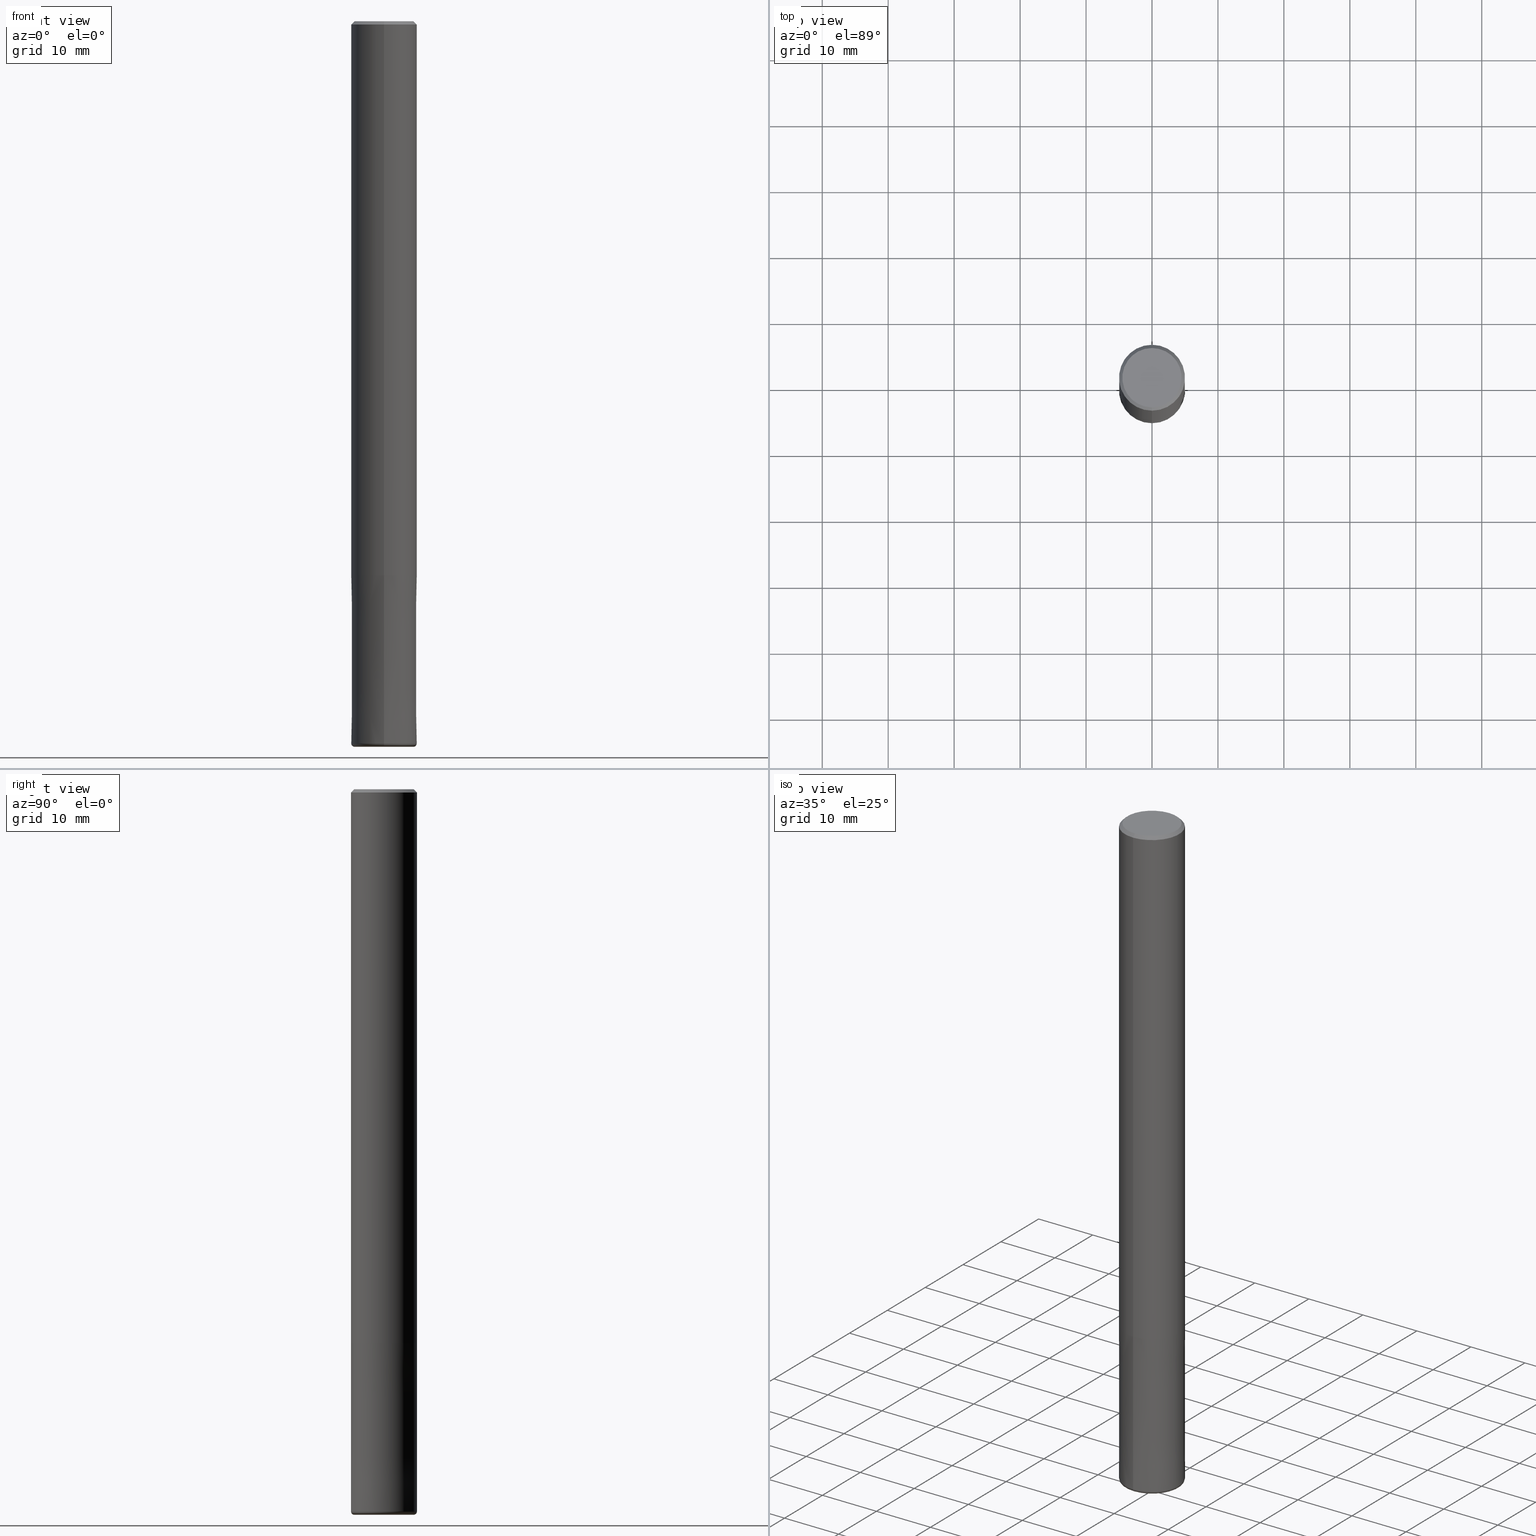
[diagram: canonical four-view strip — front | top / right | iso, engineering-drawing reading convention]
A machine part, canonical four-view strip (front | top / right | iso — engineering-drawing reading convention). The complete STEP part file that produces these views, byte-faithful:
ISO-10303-21;
HEADER;
FILE_DESCRIPTION(('no description'),'unknown implementation level');
FILE_NAME('CNRS4100-05-26-Huellk.stp','  ',('CIMSOURCE GmbH'),('CADClick - KiM GmbH - www.kimweb.de'),'unknown preprocess','ACIS','unknown authorization');
FILE_SCHEMA(('automotive_design'));
ENDSEC;
DATA;
#1=MECHANICAL_DESIGN_GEOMETRIC_PRESENTATION_REPRESENTATION(' ',(#10,#11,#12,#13,#14,#15,#16,#17,#18,#19,#20,#21,#22,#23,#24,#25,#26,#27,#28,#29,#30,#31,#32,#33,#34,#35,#36,#37,#38,#39,#40,#41,#42,#43,#44,#45,#46,#47,#48,#49,#50,#51,#52,#53),#6);
#2=PRODUCT_DEFINITION_CONTEXT('',#54,'design');
#3=APPLICATION_PROTOCOL_DEFINITION('INTERNATIONAL STANDARD','automotive_design',1994,#54);
#4=PRODUCT_CATEGORY_RELATIONSHIP('NONE','NONE',#55,#56);
#5=SHAPE_DEFINITION_REPRESENTATION(#57,#58);
#6= (GEOMETRIC_REPRESENTATION_CONTEXT(3)GLOBAL_UNCERTAINTY_ASSIGNED_CONTEXT((#61))GLOBAL_UNIT_ASSIGNED_CONTEXT((#63,#64,#65))REPRESENTATION_CONTEXT('NONE','WORKSPACE'));
#10=STYLED_ITEM('',(#67),#68);
#11=STYLED_ITEM('',(#69),#70);
#12=STYLED_ITEM('',(#71),#72);
#13=STYLED_ITEM('',(#73),#74);
#14=STYLED_ITEM('',(#75),#76);
#15=STYLED_ITEM('',(#77),#78);
#16=STYLED_ITEM('',(#79),#80);
#17=STYLED_ITEM('',(#81),#82);
#18=STYLED_ITEM('',(#83),#84);
#19=STYLED_ITEM('',(#85),#86);
#20=STYLED_ITEM('',(#87),#88);
#21=STYLED_ITEM('',(#89),#90);
#22=STYLED_ITEM('',(#91),#92);
#23=STYLED_ITEM('',(#93),#94);
#24=STYLED_ITEM('',(#95),#96);
#25=STYLED_ITEM('',(#97),#98);
#26=STYLED_ITEM('',(#99),#100);
#27=STYLED_ITEM('',(#101),#102);
#28=STYLED_ITEM('',(#103),#104);
#29=STYLED_ITEM('',(#105),#106);
#30=STYLED_ITEM('',(#107),#108);
#31=STYLED_ITEM('',(#109),#110);
#32=STYLED_ITEM('',(#111),#112);
#33=STYLED_ITEM('',(#113),#114);
#34=STYLED_ITEM('',(#115),#116);
#35=STYLED_ITEM('',(#117),#118);
#36=STYLED_ITEM('',(#119),#120);
#37=STYLED_ITEM('',(#121),#122);
#38=STYLED_ITEM('',(#123),#124);
#39=STYLED_ITEM('',(#125),#126);
#40=STYLED_ITEM('',(#127),#128);
#41=STYLED_ITEM('',(#129),#130);
#42=STYLED_ITEM('',(#131),#132);
#43=STYLED_ITEM('',(#133),#134);
#44=STYLED_ITEM('',(#135),#136);
#45=STYLED_ITEM('',(#137),#138);
#46=STYLED_ITEM('',(#139),#140);
#47=STYLED_ITEM('',(#141),#142);
#48=STYLED_ITEM('',(#143),#144);
#49=STYLED_ITEM('',(#145),#146);
#50=STYLED_ITEM('',(#147),#148);
#51=STYLED_ITEM('',(#149),#150);
#52=STYLED_ITEM('',(#151),#152);
#53=STYLED_ITEM('',(#153),#154);
#54=APPLICATION_CONTEXT(' ');
#55=PRODUCT_CATEGORY('part','NONE');
#56=PRODUCT_RELATED_PRODUCT_CATEGORY('detail',' ',(#155));
#57=PRODUCT_DEFINITION_SHAPE('NONE','NONE',#156);
#58=ADVANCED_BREP_SHAPE_REPRESENTATION('1',(#100,#157),#6);
#61=UNCERTAINTY_MEASURE_WITH_UNIT(LENGTH_MEASURE(1.0E-006),#63,'','');
#63= (CONVERSION_BASED_UNIT('MILLIMETRE',#160)LENGTH_UNIT()NAMED_UNIT(#163));
#64= (NAMED_UNIT(#165)PLANE_ANGLE_UNIT()SI_UNIT($,.RADIAN.));
#65= (NAMED_UNIT(#165)SOLID_ANGLE_UNIT()SI_UNIT($,.STERADIAN.));
#67=PRESENTATION_STYLE_ASSIGNMENT((#171));
#68=ADVANCED_FACE('',(#172),#173,.T.);
#69=PRESENTATION_STYLE_ASSIGNMENT((#174));
#70=VERTEX_POINT('',#175);
#71=PRESENTATION_STYLE_ASSIGNMENT((#176));
#72=VERTEX_POINT('',#177);
#73=PRESENTATION_STYLE_ASSIGNMENT((#178));
#74=EDGE_CURVE('',#90,#72,#179,.T.);
#75=PRESENTATION_STYLE_ASSIGNMENT((#180));
#76=EDGE_CURVE('',#94,#96,#181,.T.);
#77=PRESENTATION_STYLE_ASSIGNMENT((#182));
#78=ADVANCED_FACE('',(#183),#184,.T.);
#79=PRESENTATION_STYLE_ASSIGNMENT((#185));
#80=ADVANCED_FACE('',(#186),#187,.T.);
#81=PRESENTATION_STYLE_ASSIGNMENT((#188));
#82=EDGE_CURVE('',#150,#102,#189,.T.);
#83=PRESENTATION_STYLE_ASSIGNMENT((#190));
#84=EDGE_CURVE('',#150,#86,#191,.T.);
#85=PRESENTATION_STYLE_ASSIGNMENT((#192));
#86=VERTEX_POINT('',#193);
#87=PRESENTATION_STYLE_ASSIGNMENT((#194));
#88=ADVANCED_FACE('',(#195,#196),#197,.T.);
#89=PRESENTATION_STYLE_ASSIGNMENT((#198));
#90=VERTEX_POINT('',#199);
#91=PRESENTATION_STYLE_ASSIGNMENT((#200));
#92=ADVANCED_FACE('',(#201),#202,.T.);
#93=PRESENTATION_STYLE_ASSIGNMENT((#203));
#94=VERTEX_POINT('',#204);
#95=PRESENTATION_STYLE_ASSIGNMENT((#205));
#96=VERTEX_POINT('',#206);
#97=PRESENTATION_STYLE_ASSIGNMENT((#207));
#98=EDGE_CURVE('',#132,#90,#208,.T.);
#99=PRESENTATION_STYLE_ASSIGNMENT((#209));
#100=MANIFOLD_SOLID_BREP('1',#210);
#101=PRESENTATION_STYLE_ASSIGNMENT((#211));
#102=VERTEX_POINT('',#212);
#103=PRESENTATION_STYLE_ASSIGNMENT((#213));
#104=EDGE_CURVE('',#72,#86,#214,.T.);
#105=PRESENTATION_STYLE_ASSIGNMENT((#215));
#106=EDGE_CURVE('',#152,#110,#216,.T.);
#107=PRESENTATION_STYLE_ASSIGNMENT((#217));
#108=ADVANCED_FACE('',(#218),#219,.T.);
#109=PRESENTATION_STYLE_ASSIGNMENT((#220));
#110=VERTEX_POINT('',#221);
#111=PRESENTATION_STYLE_ASSIGNMENT((#222));
#112=VERTEX_POINT('',#223);
#113=PRESENTATION_STYLE_ASSIGNMENT((#224));
#114=EDGE_CURVE('',#112,#110,#225,.T.);
#115=PRESENTATION_STYLE_ASSIGNMENT((#226));
#116=ADVANCED_FACE('',(#227),#228,.T.);
#117=PRESENTATION_STYLE_ASSIGNMENT((#229));
#118=EDGE_CURVE('',#96,#94,#230,.T.);
#119=PRESENTATION_STYLE_ASSIGNMENT((#231));
#120=ADVANCED_FACE('',(#232),#233,.T.);
#121=PRESENTATION_STYLE_ASSIGNMENT((#234));
#122=EDGE_CURVE('',#152,#70,#235,.T.);
#123=PRESENTATION_STYLE_ASSIGNMENT((#236));
#124=ADVANCED_FACE('',(#237),#238,.T.);
#125=PRESENTATION_STYLE_ASSIGNMENT((#239));
#126=EDGE_CURVE('',#94,#110,#240,.T.);
#127=PRESENTATION_STYLE_ASSIGNMENT((#241));
#128=EDGE_CURVE('',#112,#70,#242,.T.);
#129=PRESENTATION_STYLE_ASSIGNMENT((#243));
#130=EDGE_CURVE('',#110,#112,#244,.T.);
#131=PRESENTATION_STYLE_ASSIGNMENT((#245));
#132=VERTEX_POINT('',#246);
#133=PRESENTATION_STYLE_ASSIGNMENT((#247));
#134=EDGE_CURVE('',#70,#152,#248,.T.);
#135=PRESENTATION_STYLE_ASSIGNMENT((#249));
#136=EDGE_CURVE('',#72,#102,#250,.T.);
#137=PRESENTATION_STYLE_ASSIGNMENT((#251));
#138=ADVANCED_FACE('',(#252),#253,.T.);
#139=PRESENTATION_STYLE_ASSIGNMENT((#254));
#140=EDGE_CURVE('',#112,#96,#255,.T.);
#141=PRESENTATION_STYLE_ASSIGNMENT((#256));
#142=EDGE_CURVE('',#90,#132,#257,.T.);
#143=PRESENTATION_STYLE_ASSIGNMENT((#258));
#144=EDGE_CURVE('',#86,#150,#259,.T.);
#145=PRESENTATION_STYLE_ASSIGNMENT((#260));
#146=ADVANCED_FACE('',(#261),#262,.T.);
#147=PRESENTATION_STYLE_ASSIGNMENT((#263));
#148=EDGE_CURVE('',#102,#72,#264,.T.);
#149=PRESENTATION_STYLE_ASSIGNMENT((#265));
#150=VERTEX_POINT('',#266);
#151=PRESENTATION_STYLE_ASSIGNMENT((#267));
#152=VERTEX_POINT('',#268);
#153=PRESENTATION_STYLE_ASSIGNMENT((#269));
#154=EDGE_CURVE('',#102,#132,#270,.T.);
#155=PRODUCT('1','1','PART-1-DESC',(#271));
#156=PRODUCT_DEFINITION('NONE','NONE',#272,#2);
#157=AXIS2_PLACEMENT_3D('',#273,#274,#275);
#160=LENGTH_MEASURE_WITH_UNIT(LENGTH_MEASURE(1.0),#276);
#163=DIMENSIONAL_EXPONENTS(1.0,0.0,0.0,0.0,0.0,0.0,0.0);
#165=DIMENSIONAL_EXPONENTS(0.0,0.0,0.0,0.0,0.0,0.0,0.0);
#171=SURFACE_STYLE_USAGE(.BOTH.,#277);
#172=FACE_OUTER_BOUND('',#278,.T.);
#173=CYLINDRICAL_SURFACE('',#279,5.0);
#174=POINT_STYLE(' ',#280,POSITIVE_LENGTH_MEASURE(1.0E-006),#281);
#175=CARTESIAN_POINT('',(6.1229093084765E-016,-4.9999,-84.0));
#176=POINT_STYLE(' ',#282,POSITIVE_LENGTH_MEASURE(1.0E-006),#283);
#177=CARTESIAN_POINT('',(6.12303176911189E-016,-5.0,-0.5));
#178=CURVE_STYLE('',#284,POSITIVE_LENGTH_MEASURE(1.0E-006),#285);
#179=LINE('',#286,#287);
#180=CURVE_STYLE('',#288,POSITIVE_LENGTH_MEASURE(1.0E-006),#289);
#181=CIRCLE('',#290,4.5);
#182=SURFACE_STYLE_USAGE(.BOTH.,#291);
#183=FACE_OUTER_BOUND('',#292,.T.);
#184=CONICAL_SURFACE('',#293,4.75,0.785398163397448);
#185=SURFACE_STYLE_USAGE(.BOTH.,#294);
#186=FACE_OUTER_BOUND('',#295,.T.);
#187=CONICAL_SURFACE('',#296,4.99995,3.92156862742174E-006);
#188=CURVE_STYLE('',#297,POSITIVE_LENGTH_MEASURE(1.0E-006),#298);
#189=LINE('',#299,#300);
#190=CURVE_STYLE('',#301,POSITIVE_LENGTH_MEASURE(1.0E-006),#302);
#191=CIRCLE('',#303,4.5);
#192=POINT_STYLE(' ',#304,POSITIVE_LENGTH_MEASURE(1.0E-006),#305);
#193=CARTESIAN_POINT('',(5.5107285922007E-016,-4.5,0.0));
#194=SURFACE_STYLE_USAGE(.BOTH.,#306);
#195=FACE_OUTER_BOUND('',#307,.T.);
#196=FACE_BOUND('',#308,.T.);
#197=PLANE('',#309);
#198=POINT_STYLE(' ',#310,POSITIVE_LENGTH_MEASURE(1.0E-006),#311);
#199=CARTESIAN_POINT('',(6.12303176911189E-016,-5.0,-84.0));
#200=SURFACE_STYLE_USAGE(.BOTH.,#312);
#201=FACE_OUTER_BOUND('',#313,.T.);
#202=PLANE('',#314);
#203=POINT_STYLE(' ',#315,POSITIVE_LENGTH_MEASURE(1.0E-006),#316);
#204=CARTESIAN_POINT('',(0.0,4.5,-110.0));
#205=POINT_STYLE(' ',#317,POSITIVE_LENGTH_MEASURE(1.0E-006),#318);
#206=CARTESIAN_POINT('',(5.5107285922007E-016,-4.5,-110.0));
#207=CURVE_STYLE('',#319,POSITIVE_LENGTH_MEASURE(1.0E-006),#320);
#208=CIRCLE('',#321,5.0);
#209=SURFACE_STYLE_USAGE(.BOTH.,#322);
#210=CLOSED_SHELL('',(#138,#116,#120,#108,#88,#146,#78,#68,#80,#124,#92));
#211=POINT_STYLE(' ',#323,POSITIVE_LENGTH_MEASURE(1.0E-006),#324);
#212=CARTESIAN_POINT('',(0.0,5.0,-0.5));
#213=CURVE_STYLE('',#325,POSITIVE_LENGTH_MEASURE(1.0E-006),#326);
#214=LINE('',#327,#328);
#215=CURVE_STYLE('',#329,POSITIVE_LENGTH_MEASURE(1.0E-006),#330);
#216=LINE('',#331,#332);
#217=SURFACE_STYLE_USAGE(.BOTH.,#333);
#218=FACE_OUTER_BOUND('',#334,.T.);
#219=CONICAL_SURFACE('',#335,4.75,0.785398163397448);
#220=POINT_STYLE(' ',#336,POSITIVE_LENGTH_MEASURE(1.0E-006),#337);
#221=CARTESIAN_POINT('',(0.0,5.0,-109.5));
#222=POINT_STYLE(' ',#338,POSITIVE_LENGTH_MEASURE(1.0E-006),#339);
#223=CARTESIAN_POINT('',(6.12303176911189E-016,-5.0,-109.5));
#224=CURVE_STYLE('',#340,POSITIVE_LENGTH_MEASURE(1.0E-006),#341);
#225=CIRCLE('',#342,5.0);
#226=SURFACE_STYLE_USAGE(.BOTH.,#343);
#227=FACE_OUTER_BOUND('',#344,.T.);
#228=CONICAL_SURFACE('',#345,4.99995,3.92156862742174E-006);
#229=CURVE_STYLE('',#346,POSITIVE_LENGTH_MEASURE(1.0E-006),#347);
#230=CIRCLE('',#348,4.5);
#231=SURFACE_STYLE_USAGE(.BOTH.,#349);
#232=FACE_OUTER_BOUND('',#350,.T.);
#233=CYLINDRICAL_SURFACE('',#351,5.0);
#234=CURVE_STYLE('',#352,POSITIVE_LENGTH_MEASURE(1.0E-006),#353);
#235=CIRCLE('',#354,4.9999);
#236=SURFACE_STYLE_USAGE(.BOTH.,#355);
#237=FACE_OUTER_BOUND('',#356,.T.);
#238=TOROIDAL_SURFACE('',#357,4.49999999999999,0.500000000000007);
#239=CURVE_STYLE('',#358,POSITIVE_LENGTH_MEASURE(1.0E-006),#359);
#240=CIRCLE('',#360,0.500000000000007);
#241=CURVE_STYLE('',#361,POSITIVE_LENGTH_MEASURE(1.0E-006),#362);
#242=LINE('',#363,#364);
#243=CURVE_STYLE('',#365,POSITIVE_LENGTH_MEASURE(1.0E-006),#366);
#244=CIRCLE('',#367,5.0);
#245=POINT_STYLE(' ',#368,POSITIVE_LENGTH_MEASURE(1.0E-006),#369);
#246=CARTESIAN_POINT('',(0.0,5.0,-84.0));
#247=CURVE_STYLE('',#370,POSITIVE_LENGTH_MEASURE(1.0E-006),#371);
#248=CIRCLE('',#372,4.9999);
#249=CURVE_STYLE('',#373,POSITIVE_LENGTH_MEASURE(1.0E-006),#374);
#250=CIRCLE('',#375,5.0);
#251=SURFACE_STYLE_USAGE(.BOTH.,#376);
#252=FACE_OUTER_BOUND('',#377,.T.);
#253=TOROIDAL_SURFACE('',#378,4.49999999999999,0.500000000000007);
#254=CURVE_STYLE('',#379,POSITIVE_LENGTH_MEASURE(1.0E-006),#380);
#255=CIRCLE('',#381,0.500000000000007);
#256=CURVE_STYLE('',#382,POSITIVE_LENGTH_MEASURE(1.0E-006),#383);
#257=CIRCLE('',#384,5.0);
#258=CURVE_STYLE('',#385,POSITIVE_LENGTH_MEASURE(1.0E-006),#386);
#259=CIRCLE('',#387,4.5);
#260=SURFACE_STYLE_USAGE(.BOTH.,#388);
#261=FACE_OUTER_BOUND('',#389,.T.);
#262=PLANE('',#390);
#263=CURVE_STYLE('',#391,POSITIVE_LENGTH_MEASURE(1.0E-006),#392);
#264=CIRCLE('',#393,5.0);
#265=POINT_STYLE(' ',#394,POSITIVE_LENGTH_MEASURE(1.0E-006),#395);
#266=CARTESIAN_POINT('',(0.0,4.5,0.0));
#267=POINT_STYLE(' ',#396,POSITIVE_LENGTH_MEASURE(1.0E-006),#397);
#268=CARTESIAN_POINT('',(0.0,4.9999,-84.0));
#269=CURVE_STYLE('',#398,POSITIVE_LENGTH_MEASURE(1.0E-006),#399);
#270=LINE('',#400,#401);
#271=PRODUCT_CONTEXT('',#54,'mechanical');
#272=PRODUCT_DEFINITION_FORMATION_WITH_SPECIFIED_SOURCE(' ','NONE',#155,.NOT_KNOWN.);
#273=CARTESIAN_POINT('',(0.0,0.0,0.0));
#274=DIRECTION('',(0.0,0.0,1.0));
#275=DIRECTION('',(1.0,0.0,0.0));
#276= (NAMED_UNIT(#163)LENGTH_UNIT()SI_UNIT(.MILLI.,.METRE.));
#277=SURFACE_SIDE_STYLE('',(#403));
#278=EDGE_LOOP('',(#404,#405,#406,#407));
#279=AXIS2_PLACEMENT_3D('',#408,#409,#410);
#280=PRE_DEFINED_MARKER('');
#281=COLOUR_RGB('',0.800000011920929,0.800000011920929,0.800000011920929);
#282=PRE_DEFINED_MARKER('');
#283=COLOUR_RGB('',0.498039215803146,0.498039215803146,0.498039215803146);
#284=DRAUGHTING_PRE_DEFINED_CURVE_FONT('continuous');
#285=COLOUR_RGB('',0.498039215803146,0.498039215803146,0.498039215803146);
#286=CARTESIAN_POINT('',(6.12303176911189E-016,-5.0,-42.25));
#287=VECTOR('',#411,1.0);
#288=DRAUGHTING_PRE_DEFINED_CURVE_FONT('continuous');
#289=COLOUR_RGB('',0.800000011920929,0.800000011920929,0.800000011920929);
#290=AXIS2_PLACEMENT_3D('',#412,#413,#414);
#291=SURFACE_SIDE_STYLE('',(#415));
#292=EDGE_LOOP('',(#416,#417,#418,#419));
#293=AXIS2_PLACEMENT_3D('',#420,#421,#422);
#294=SURFACE_SIDE_STYLE('',(#423));
#295=EDGE_LOOP('',(#424,#425,#426,#427));
#296=AXIS2_PLACEMENT_3D('',#428,#429,#430);
#297=DRAUGHTING_PRE_DEFINED_CURVE_FONT('continuous');
#298=COLOUR_RGB('',0.498039215803146,0.498039215803146,0.498039215803146);
#299=CARTESIAN_POINT('',(-5.81688018065629E-016,4.75,-0.25));
#300=VECTOR('',#431,1.0);
#301=DRAUGHTING_PRE_DEFINED_CURVE_FONT('continuous');
#302=COLOUR_RGB('',0.498039215803146,0.498039215803146,0.498039215803146);
#303=AXIS2_PLACEMENT_3D('',#432,#433,#434);
#304=PRE_DEFINED_MARKER('');
#305=COLOUR_RGB('',0.498039215803146,0.498039215803146,0.498039215803146);
#306=SURFACE_SIDE_STYLE('',(#435));
#307=EDGE_LOOP('',(#436,#437));
#308=EDGE_LOOP('',(#438,#439));
#309=AXIS2_PLACEMENT_3D('',#440,#441,#442);
#310=PRE_DEFINED_MARKER('');
#311=COLOUR_RGB('',0.498039215803146,0.498039215803146,0.498039215803146);
#312=SURFACE_SIDE_STYLE('',(#443));
#313=EDGE_LOOP('',(#444,#445));
#314=AXIS2_PLACEMENT_3D('',#446,#447,#448);
#315=PRE_DEFINED_MARKER('');
#316=COLOUR_RGB('',0.800000011920929,0.800000011920929,0.800000011920929);
#317=PRE_DEFINED_MARKER('');
#318=COLOUR_RGB('',0.800000011920929,0.800000011920929,0.800000011920929);
#319=DRAUGHTING_PRE_DEFINED_CURVE_FONT('continuous');
#320=COLOUR_RGB('',0.498039215803146,0.498039215803146,0.498039215803146);
#321=AXIS2_PLACEMENT_3D('',#449,#450,#451);
#322=SURFACE_SIDE_STYLE('',(#452));
#323=PRE_DEFINED_MARKER('');
#324=COLOUR_RGB('',0.498039215803146,0.498039215803146,0.498039215803146);
#325=DRAUGHTING_PRE_DEFINED_CURVE_FONT('continuous');
#326=COLOUR_RGB('',0.498039215803146,0.498039215803146,0.498039215803146);
#327=CARTESIAN_POINT('',(5.81688018065629E-016,-4.75,-0.25));
#328=VECTOR('',#453,1.0);
#329=DRAUGHTING_PRE_DEFINED_CURVE_FONT('continuous');
#330=COLOUR_RGB('',0.800000011920929,0.800000011920929,0.800000011920929);
#331=CARTESIAN_POINT('',(-6.12297053879419E-016,4.99995,-96.75));
#332=VECTOR('',#454,1.0);
#333=SURFACE_SIDE_STYLE('',(#455));
#334=EDGE_LOOP('',(#456,#457,#458,#459));
#335=AXIS2_PLACEMENT_3D('',#460,#461,#462);
#336=PRE_DEFINED_MARKER('');
#337=COLOUR_RGB('',0.800000011920929,0.800000011920929,0.800000011920929);
#338=PRE_DEFINED_MARKER('');
#339=COLOUR_RGB('',0.800000011920929,0.800000011920929,0.800000011920929);
#340=DRAUGHTING_PRE_DEFINED_CURVE_FONT('continuous');
#341=COLOUR_RGB('',0.800000011920929,0.800000011920929,0.800000011920929);
#342=AXIS2_PLACEMENT_3D('',#463,#464,#465);
#343=SURFACE_SIDE_STYLE('',(#466));
#344=EDGE_LOOP('',(#467,#468,#469,#470));
#345=AXIS2_PLACEMENT_3D('',#471,#472,#473);
#346=DRAUGHTING_PRE_DEFINED_CURVE_FONT('continuous');
#347=COLOUR_RGB('',0.800000011920929,0.800000011920929,0.800000011920929);
#348=AXIS2_PLACEMENT_3D('',#474,#475,#476);
#349=SURFACE_SIDE_STYLE('',(#477));
#350=EDGE_LOOP('',(#478,#479,#480,#481));
#351=AXIS2_PLACEMENT_3D('',#482,#483,#484);
#352=DRAUGHTING_PRE_DEFINED_CURVE_FONT('continuous');
#353=COLOUR_RGB('',0.800000011920929,0.800000011920929,0.800000011920929);
#354=AXIS2_PLACEMENT_3D('',#485,#486,#487);
#355=SURFACE_SIDE_STYLE('',(#488));
#356=EDGE_LOOP('',(#489,#490,#491,#492));
#357=AXIS2_PLACEMENT_3D('',#493,#494,#495);
#358=DRAUGHTING_PRE_DEFINED_CURVE_FONT('continuous');
#359=COLOUR_RGB('',0.800000011920929,0.800000011920929,0.800000011920929);
#360=AXIS2_PLACEMENT_3D('',#496,#497,#498);
#361=DRAUGHTING_PRE_DEFINED_CURVE_FONT('continuous');
#362=COLOUR_RGB('',0.800000011920929,0.800000011920929,0.800000011920929);
#363=CARTESIAN_POINT('',(6.12297053879419E-016,-4.99995,-96.75));
#364=VECTOR('',#499,1.0);
#365=DRAUGHTING_PRE_DEFINED_CURVE_FONT('continuous');
#366=COLOUR_RGB('',0.800000011920929,0.800000011920929,0.800000011920929);
#367=AXIS2_PLACEMENT_3D('',#500,#501,#502);
#368=PRE_DEFINED_MARKER('');
#369=COLOUR_RGB('',0.498039215803146,0.498039215803146,0.498039215803146);
#370=DRAUGHTING_PRE_DEFINED_CURVE_FONT('continuous');
#371=COLOUR_RGB('',0.800000011920929,0.800000011920929,0.800000011920929);
#372=AXIS2_PLACEMENT_3D('',#503,#504,#505);
#373=DRAUGHTING_PRE_DEFINED_CURVE_FONT('continuous');
#374=COLOUR_RGB('',0.498039215803146,0.498039215803146,0.498039215803146);
#375=AXIS2_PLACEMENT_3D('',#506,#507,#508);
#376=SURFACE_SIDE_STYLE('',(#509));
#377=EDGE_LOOP('',(#510,#511,#512,#513));
#378=AXIS2_PLACEMENT_3D('',#514,#515,#516);
#379=DRAUGHTING_PRE_DEFINED_CURVE_FONT('continuous');
#380=COLOUR_RGB('',0.800000011920929,0.800000011920929,0.800000011920929);
#381=AXIS2_PLACEMENT_3D('',#517,#518,#519);
#382=DRAUGHTING_PRE_DEFINED_CURVE_FONT('continuous');
#383=COLOUR_RGB('',0.498039215803146,0.498039215803146,0.498039215803146);
#384=AXIS2_PLACEMENT_3D('',#520,#521,#522);
#385=DRAUGHTING_PRE_DEFINED_CURVE_FONT('continuous');
#386=COLOUR_RGB('',0.498039215803146,0.498039215803146,0.498039215803146);
#387=AXIS2_PLACEMENT_3D('',#523,#524,#525);
#388=SURFACE_SIDE_STYLE('',(#526));
#389=EDGE_LOOP('',(#527,#528));
#390=AXIS2_PLACEMENT_3D('',#529,#530,#531);
#391=DRAUGHTING_PRE_DEFINED_CURVE_FONT('continuous');
#392=COLOUR_RGB('',0.498039215803146,0.498039215803146,0.498039215803146);
#393=AXIS2_PLACEMENT_3D('',#532,#533,#534);
#394=PRE_DEFINED_MARKER('');
#395=COLOUR_RGB('',0.498039215803146,0.498039215803146,0.498039215803146);
#396=PRE_DEFINED_MARKER('');
#397=COLOUR_RGB('',0.800000011920929,0.800000011920929,0.800000011920929);
#398=DRAUGHTING_PRE_DEFINED_CURVE_FONT('continuous');
#399=COLOUR_RGB('',0.498039215803146,0.498039215803146,0.498039215803146);
#400=CARTESIAN_POINT('',(-6.12303176911189E-016,5.0,-42.25));
#401=VECTOR('',#535,1.0);
#403=SURFACE_STYLE_FILL_AREA(#536);
#404=ORIENTED_EDGE('',*,*,#154,.T.);
#405=ORIENTED_EDGE('',*,*,#142,.F.);
#406=ORIENTED_EDGE('',*,*,#74,.T.);
#407=ORIENTED_EDGE('',*,*,#136,.T.);
#408=CARTESIAN_POINT('',(0.0,0.0,-42.25));
#409=DIRECTION('',(-0.0,-0.0,1.0));
#410=DIRECTION('',(0.0,1.0,0.0));
#411=DIRECTION('',(-0.0,-0.0,1.0));
#412=CARTESIAN_POINT('',(0.0,0.0,-110.0));
#413=DIRECTION('',(0.0,0.0,-1.0));
#414=DIRECTION('',(0.0,1.0,0.0));
#415=SURFACE_STYLE_FILL_AREA(#537);
#416=ORIENTED_EDGE('',*,*,#82,.T.);
#417=ORIENTED_EDGE('',*,*,#136,.F.);
#418=ORIENTED_EDGE('',*,*,#104,.T.);
#419=ORIENTED_EDGE('',*,*,#144,.T.);
#420=CARTESIAN_POINT('',(0.0,0.0,-0.25));
#421=DIRECTION('',(0.0,-0.0,-1.0));
#422=DIRECTION('',(0.0,1.0,0.0));
#423=SURFACE_STYLE_FILL_AREA(#538);
#424=ORIENTED_EDGE('',*,*,#106,.T.);
#425=ORIENTED_EDGE('',*,*,#114,.F.);
#426=ORIENTED_EDGE('',*,*,#128,.T.);
#427=ORIENTED_EDGE('',*,*,#134,.T.);
#428=CARTESIAN_POINT('',(0.0,0.0,-96.75));
#429=DIRECTION('',(0.0,-0.0,-1.0));
#430=DIRECTION('',(0.0,1.0,0.0));
#431=DIRECTION('',(-8.65927457071936E-017,0.707106781186548,-0.707106781186548));
#432=CARTESIAN_POINT('',(0.0,0.0,0.0));
#433=DIRECTION('',(0.0,0.0,-1.0));
#434=DIRECTION('',(0.0,1.0,0.0));
#435=SURFACE_STYLE_FILL_AREA(#539);
#436=ORIENTED_EDGE('',*,*,#98,.T.);
#437=ORIENTED_EDGE('',*,*,#142,.T.);
#438=ORIENTED_EDGE('',*,*,#122,.F.);
#439=ORIENTED_EDGE('',*,*,#134,.F.);
#440=CARTESIAN_POINT('',(0.0,2.5,-84.0));
#441=DIRECTION('',(0.0,0.0,-1.0));
#442=DIRECTION('',(0.0,1.0,0.0));
#443=SURFACE_STYLE_FILL_AREA(#540);
#444=ORIENTED_EDGE('',*,*,#76,.T.);
#445=ORIENTED_EDGE('',*,*,#118,.T.);
#446=CARTESIAN_POINT('',(0.0,2.25,-110.0));
#447=DIRECTION('',(0.0,0.0,-1.0));
#448=DIRECTION('',(0.0,1.0,0.0));
#449=CARTESIAN_POINT('',(0.0,0.0,-84.0));
#450=DIRECTION('',(0.0,0.0,-1.0));
#451=DIRECTION('',(0.0,1.0,0.0));
#452=SURFACE_STYLE_FILL_AREA(#541);
#453=DIRECTION('',(-8.65927457071936E-017,0.707106781186548,0.707106781186548));
#454=DIRECTION('',(-4.80237785807885E-022,3.92156862741169E-006,-0.999999999992311));
#455=SURFACE_STYLE_FILL_AREA(#542);
#456=ORIENTED_EDGE('',*,*,#82,.F.);
#457=ORIENTED_EDGE('',*,*,#84,.T.);
#458=ORIENTED_EDGE('',*,*,#104,.F.);
#459=ORIENTED_EDGE('',*,*,#148,.F.);
#460=CARTESIAN_POINT('',(0.0,0.0,-0.25));
#461=DIRECTION('',(0.0,-0.0,-1.0));
#462=DIRECTION('',(0.0,1.0,0.0));
#463=CARTESIAN_POINT('',(0.0,0.0,-109.5));
#464=DIRECTION('',(0.0,0.0,-1.0));
#465=DIRECTION('',(0.0,1.0,0.0));
#466=SURFACE_STYLE_FILL_AREA(#543);
#467=ORIENTED_EDGE('',*,*,#106,.F.);
#468=ORIENTED_EDGE('',*,*,#122,.T.);
#469=ORIENTED_EDGE('',*,*,#128,.F.);
#470=ORIENTED_EDGE('',*,*,#130,.F.);
#471=CARTESIAN_POINT('',(0.0,0.0,-96.75));
#472=DIRECTION('',(0.0,-0.0,-1.0));
#473=DIRECTION('',(0.0,1.0,0.0));
#474=CARTESIAN_POINT('',(0.0,0.0,-110.0));
#475=DIRECTION('',(0.0,0.0,-1.0));
#476=DIRECTION('',(0.0,1.0,0.0));
#477=SURFACE_STYLE_FILL_AREA(#544);
#478=ORIENTED_EDGE('',*,*,#154,.F.);
#479=ORIENTED_EDGE('',*,*,#148,.T.);
#480=ORIENTED_EDGE('',*,*,#74,.F.);
#481=ORIENTED_EDGE('',*,*,#98,.F.);
#482=CARTESIAN_POINT('',(0.0,0.0,-42.25));
#483=DIRECTION('',(-0.0,-0.0,1.0));
#484=DIRECTION('',(0.0,1.0,0.0));
#485=CARTESIAN_POINT('',(0.0,0.0,-84.0));
#486=DIRECTION('',(0.0,0.0,-1.0));
#487=DIRECTION('',(0.0,1.0,0.0));
#488=SURFACE_STYLE_FILL_AREA(#545);
#489=ORIENTED_EDGE('',*,*,#140,.T.);
#490=ORIENTED_EDGE('',*,*,#76,.F.);
#491=ORIENTED_EDGE('',*,*,#126,.T.);
#492=ORIENTED_EDGE('',*,*,#130,.T.);
#493=CARTESIAN_POINT('',(0.0,0.0,-109.5));
#494=DIRECTION('',(0.0,0.0,-1.0));
#495=DIRECTION('',(0.0,-1.0,0.0));
#496=CARTESIAN_POINT('',(-5.51072859220069E-016,4.49999999999999,-109.5));
#497=DIRECTION('',(1.0,1.22460635382238E-016,0.0));
#498=DIRECTION('',(-1.22460635382238E-016,1.0,0.0));
#499=DIRECTION('',(-4.80237785807885E-022,3.92156862741169E-006,0.999999999992311));
#500=CARTESIAN_POINT('',(0.0,0.0,-109.5));
#501=DIRECTION('',(0.0,0.0,-1.0));
#502=DIRECTION('',(0.0,1.0,0.0));
#503=CARTESIAN_POINT('',(0.0,0.0,-84.0));
#504=DIRECTION('',(0.0,0.0,-1.0));
#505=DIRECTION('',(0.0,1.0,0.0));
#506=CARTESIAN_POINT('',(0.0,0.0,-0.5));
#507=DIRECTION('',(0.0,0.0,-1.0));
#508=DIRECTION('',(0.0,1.0,0.0));
#509=SURFACE_STYLE_FILL_AREA(#546);
#510=ORIENTED_EDGE('',*,*,#140,.F.);
#511=ORIENTED_EDGE('',*,*,#114,.T.);
#512=ORIENTED_EDGE('',*,*,#126,.F.);
#513=ORIENTED_EDGE('',*,*,#118,.F.);
#514=CARTESIAN_POINT('',(0.0,0.0,-109.5));
#515=DIRECTION('',(0.0,0.0,-1.0));
#516=DIRECTION('',(0.0,-1.0,0.0));
#517=CARTESIAN_POINT('',(5.51072859220069E-016,-4.49999999999999,-109.5));
#518=DIRECTION('',(1.0,1.22460635382238E-016,0.0));
#519=DIRECTION('',(1.22460635382238E-016,-1.0,-0.0));
#520=CARTESIAN_POINT('',(0.0,0.0,-84.0));
#521=DIRECTION('',(0.0,0.0,-1.0));
#522=DIRECTION('',(0.0,1.0,0.0));
#523=CARTESIAN_POINT('',(0.0,0.0,0.0));
#524=DIRECTION('',(0.0,0.0,-1.0));
#525=DIRECTION('',(0.0,1.0,0.0));
#526=SURFACE_STYLE_FILL_AREA(#547);
#527=ORIENTED_EDGE('',*,*,#84,.F.);
#528=ORIENTED_EDGE('',*,*,#144,.F.);
#529=CARTESIAN_POINT('',(0.0,2.25,0.0));
#530=DIRECTION('',(-0.0,0.0,1.0));
#531=DIRECTION('',(0.0,-1.0,0.0));
#532=CARTESIAN_POINT('',(0.0,0.0,-0.5));
#533=DIRECTION('',(0.0,0.0,-1.0));
#534=DIRECTION('',(0.0,1.0,0.0));
#535=DIRECTION('',(0.0,0.0,-1.0));
#536=FILL_AREA_STYLE('',(#548));
#537=FILL_AREA_STYLE('',(#549));
#538=FILL_AREA_STYLE('',(#550));
#539=FILL_AREA_STYLE('',(#551));
#540=FILL_AREA_STYLE('',(#552));
#541=FILL_AREA_STYLE('',(#553));
#542=FILL_AREA_STYLE('',(#554));
#543=FILL_AREA_STYLE('',(#555));
#544=FILL_AREA_STYLE('',(#556));
#545=FILL_AREA_STYLE('',(#557));
#546=FILL_AREA_STYLE('',(#558));
#547=FILL_AREA_STYLE('',(#559));
#548=FILL_AREA_STYLE_COLOUR('',#560);
#549=FILL_AREA_STYLE_COLOUR('',#561);
#550=FILL_AREA_STYLE_COLOUR('',#562);
#551=FILL_AREA_STYLE_COLOUR('',#563);
#552=FILL_AREA_STYLE_COLOUR('',#564);
#553=FILL_AREA_STYLE_COLOUR('',#565);
#554=FILL_AREA_STYLE_COLOUR('',#566);
#555=FILL_AREA_STYLE_COLOUR('',#567);
#556=FILL_AREA_STYLE_COLOUR('',#568);
#557=FILL_AREA_STYLE_COLOUR('',#569);
#558=FILL_AREA_STYLE_COLOUR('',#570);
#559=FILL_AREA_STYLE_COLOUR('',#571);
#560=COLOUR_RGB('',0.498039215803146,0.498039215803146,0.498039215803146);
#561=COLOUR_RGB('',0.498039215803146,0.498039215803146,0.498039215803146);
#562=COLOUR_RGB('',0.800000011920929,0.800000011920929,0.800000011920929);
#563=COLOUR_RGB('',0.498039215803146,0.498039215803146,0.498039215803146);
#564=COLOUR_RGB('',0.800000011920929,0.800000011920929,0.800000011920929);
#565=COLOUR_RGB('',0.800000011920929,0.800000011920929,0.800000011920929);
#566=COLOUR_RGB('',0.498039215803146,0.498039215803146,0.498039215803146);
#567=COLOUR_RGB('',0.800000011920929,0.800000011920929,0.800000011920929);
#568=COLOUR_RGB('',0.498039215803146,0.498039215803146,0.498039215803146);
#569=COLOUR_RGB('',0.800000011920929,0.800000011920929,0.800000011920929);
#570=COLOUR_RGB('',0.800000011920929,0.800000011920929,0.800000011920929);
#571=COLOUR_RGB('',0.498039215803146,0.498039215803146,0.498039215803146);
#572=AXIS2_PLACEMENT_3D('PCS',#573,#574,#575);
#573=CARTESIAN_POINT('',(0.0,0.0,0.0));
#574=DIRECTION('',(0.0,0.0,1.0));
#575=DIRECTION('',(1.0,0.0,0.0));
#576=AXIS2_PLACEMENT_3D('CIP',#577,#578,#579);
#577=CARTESIAN_POINT('',(0.0,0.0,-110.0));
#578=DIRECTION('',(0.0,0.0,1.0));
#579=DIRECTION('',(1.0,0.0,0.0));
#580=AXIS2_PLACEMENT_3D('CRP',#581,#582,#583);
#581=CARTESIAN_POINT('',(-5.0,0.0,-110.0));
#582=DIRECTION('',(0.0,0.0,1.0));
#583=DIRECTION('',(1.0,0.0,0.0));
#584=AXIS2_PLACEMENT_3D('MCS',#585,#586,#587);
#585=CARTESIAN_POINT('',(0.0,0.0,-84.0));
#586=DIRECTION('',(0.0,0.0,1.0));
#587=DIRECTION('',(1.0,0.0,0.0));
#588=CONSTRUCTIVE_GEOMETRY_REPRESENTATION_RELATIONSHIP('coordinate systems',$,#58,#589);
#589=CONSTRUCTIVE_GEOMETRY_REPRESENTATION('coordinate systems',(#572,#576,#580,#584),#6);
ENDSEC;
END-ISO-10303-21;
